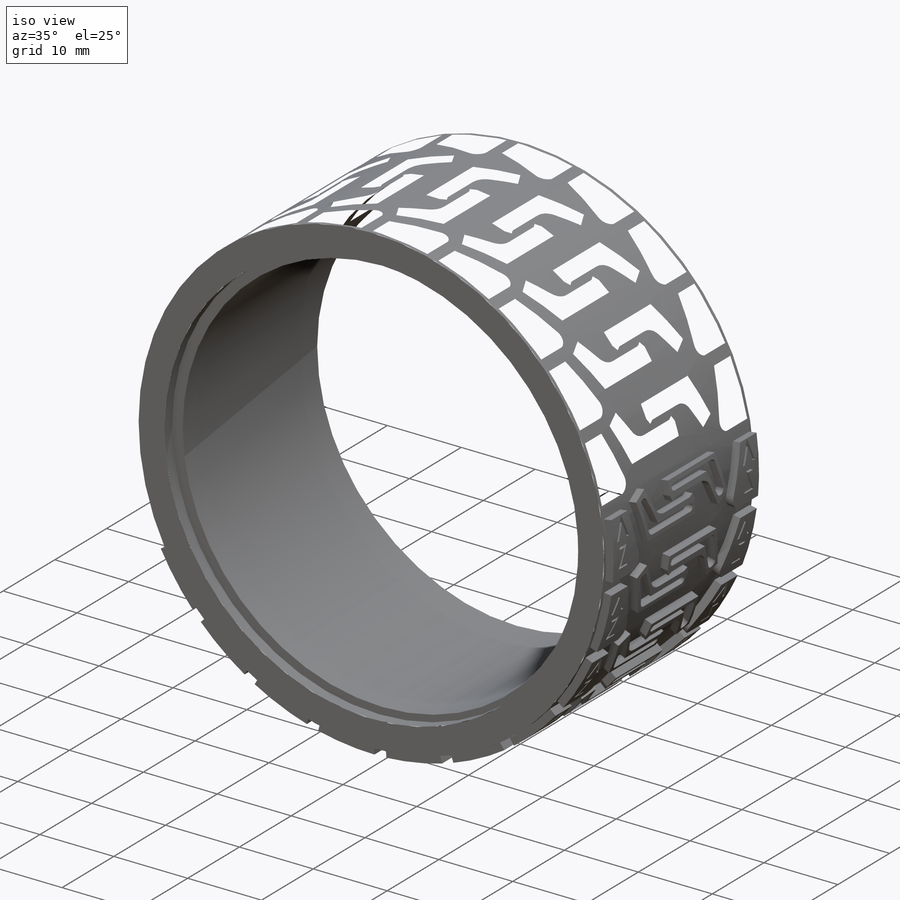
[diagram: iso view]
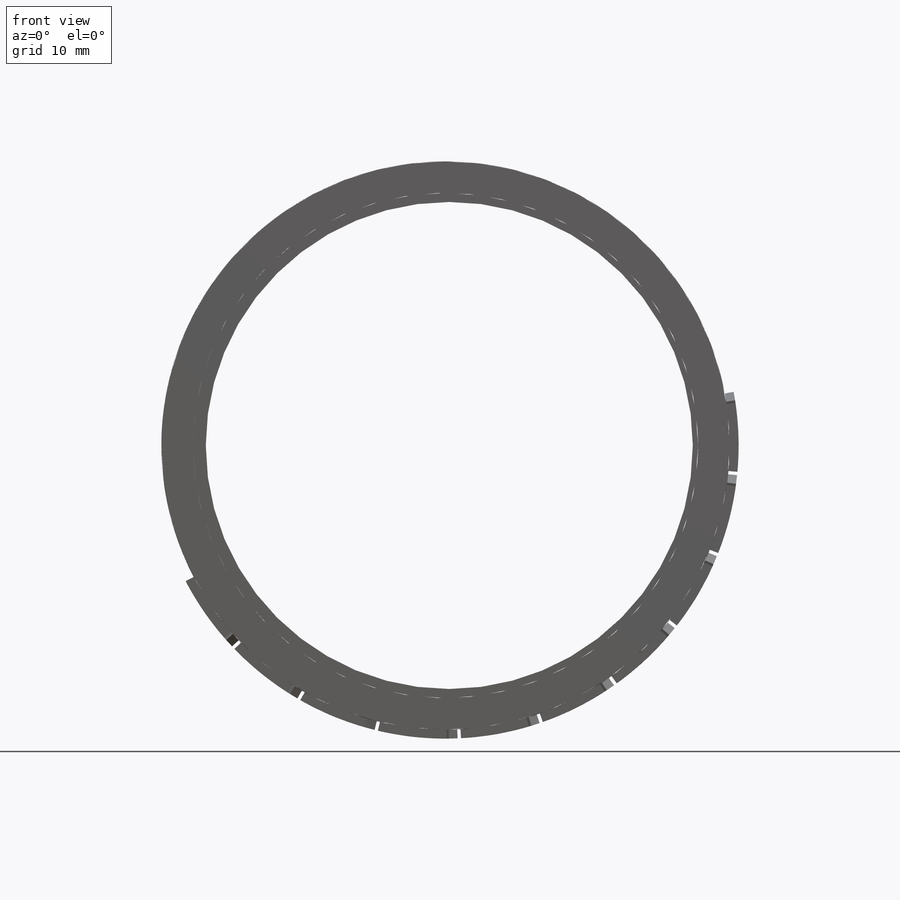
[diagram: front view]
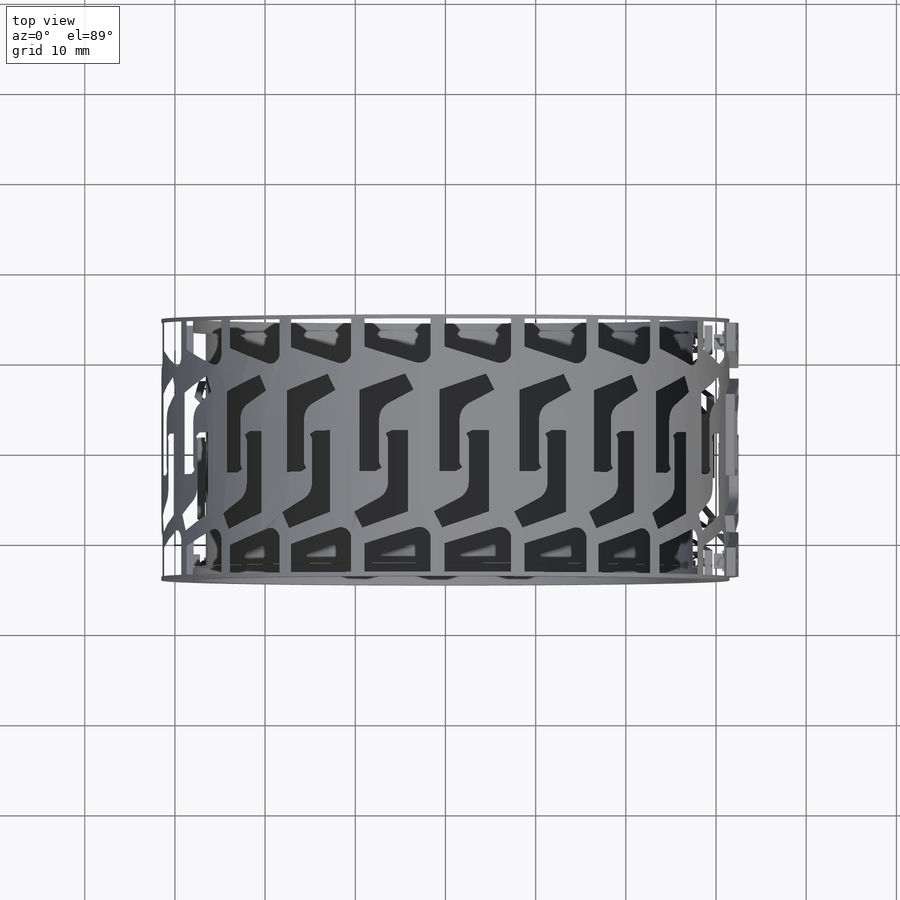
[diagram: top view]
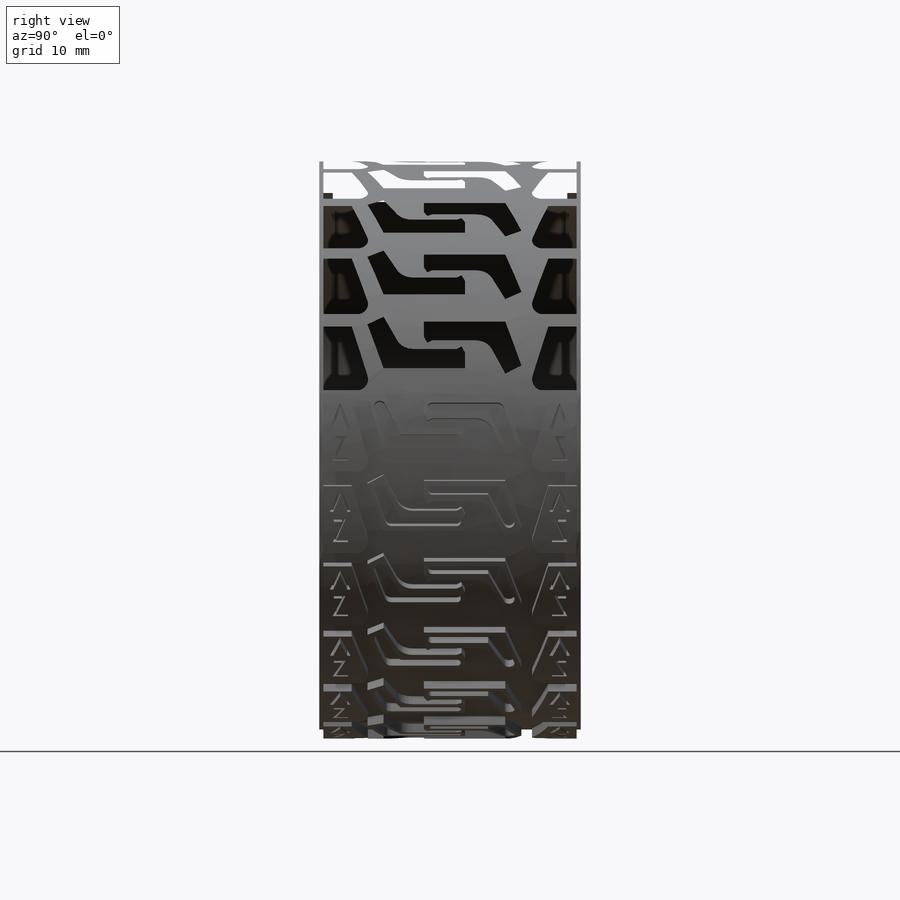
[diagram: right view]
SOLIDWORKS PART (.sldprt)
format: sldprt  version: not decoded by parser v0  size: 3,538,944 bytes
history: native  units: mm
features: sketch x3, extrude x2, material x1, pattern_circular x1 (+13 scaffold rows collapsed)
feature tree (20):
  scaffold x13  (default folders/planes/origin — collapsed)
  material  "Material <not specified>"
  sketch  "Sketch1"  dims[D1=63.0mm D2=56.0mm]
  extrude  "Boss-Extrude1"  Depth=29mm
  sketch  "Sketch2"  dims[D1=54.0mm]
  extrude  "Boss-Extrude2"  Depth=26mm
  sketch  "Sketch3"  dims[c1.D1=0.1mm c1.D2=0.1mm c2.D1=~1.900641mm c3.D1=45.0deg c3.D2=~2.80743mm c4.D2=45.0deg c5.D2=0.5mm c5.D1=0.1mm c6.D1=1.0mm]
  pattern_circular  "CirPattern6"  Count=22 Angle=360deg
decode coverage: 6 of 6 modeling features carry decoded parameters
note: ~ marks probable driven/reference dimensions
note: suppression state not decoded; provenance and decode notes live in map.json
